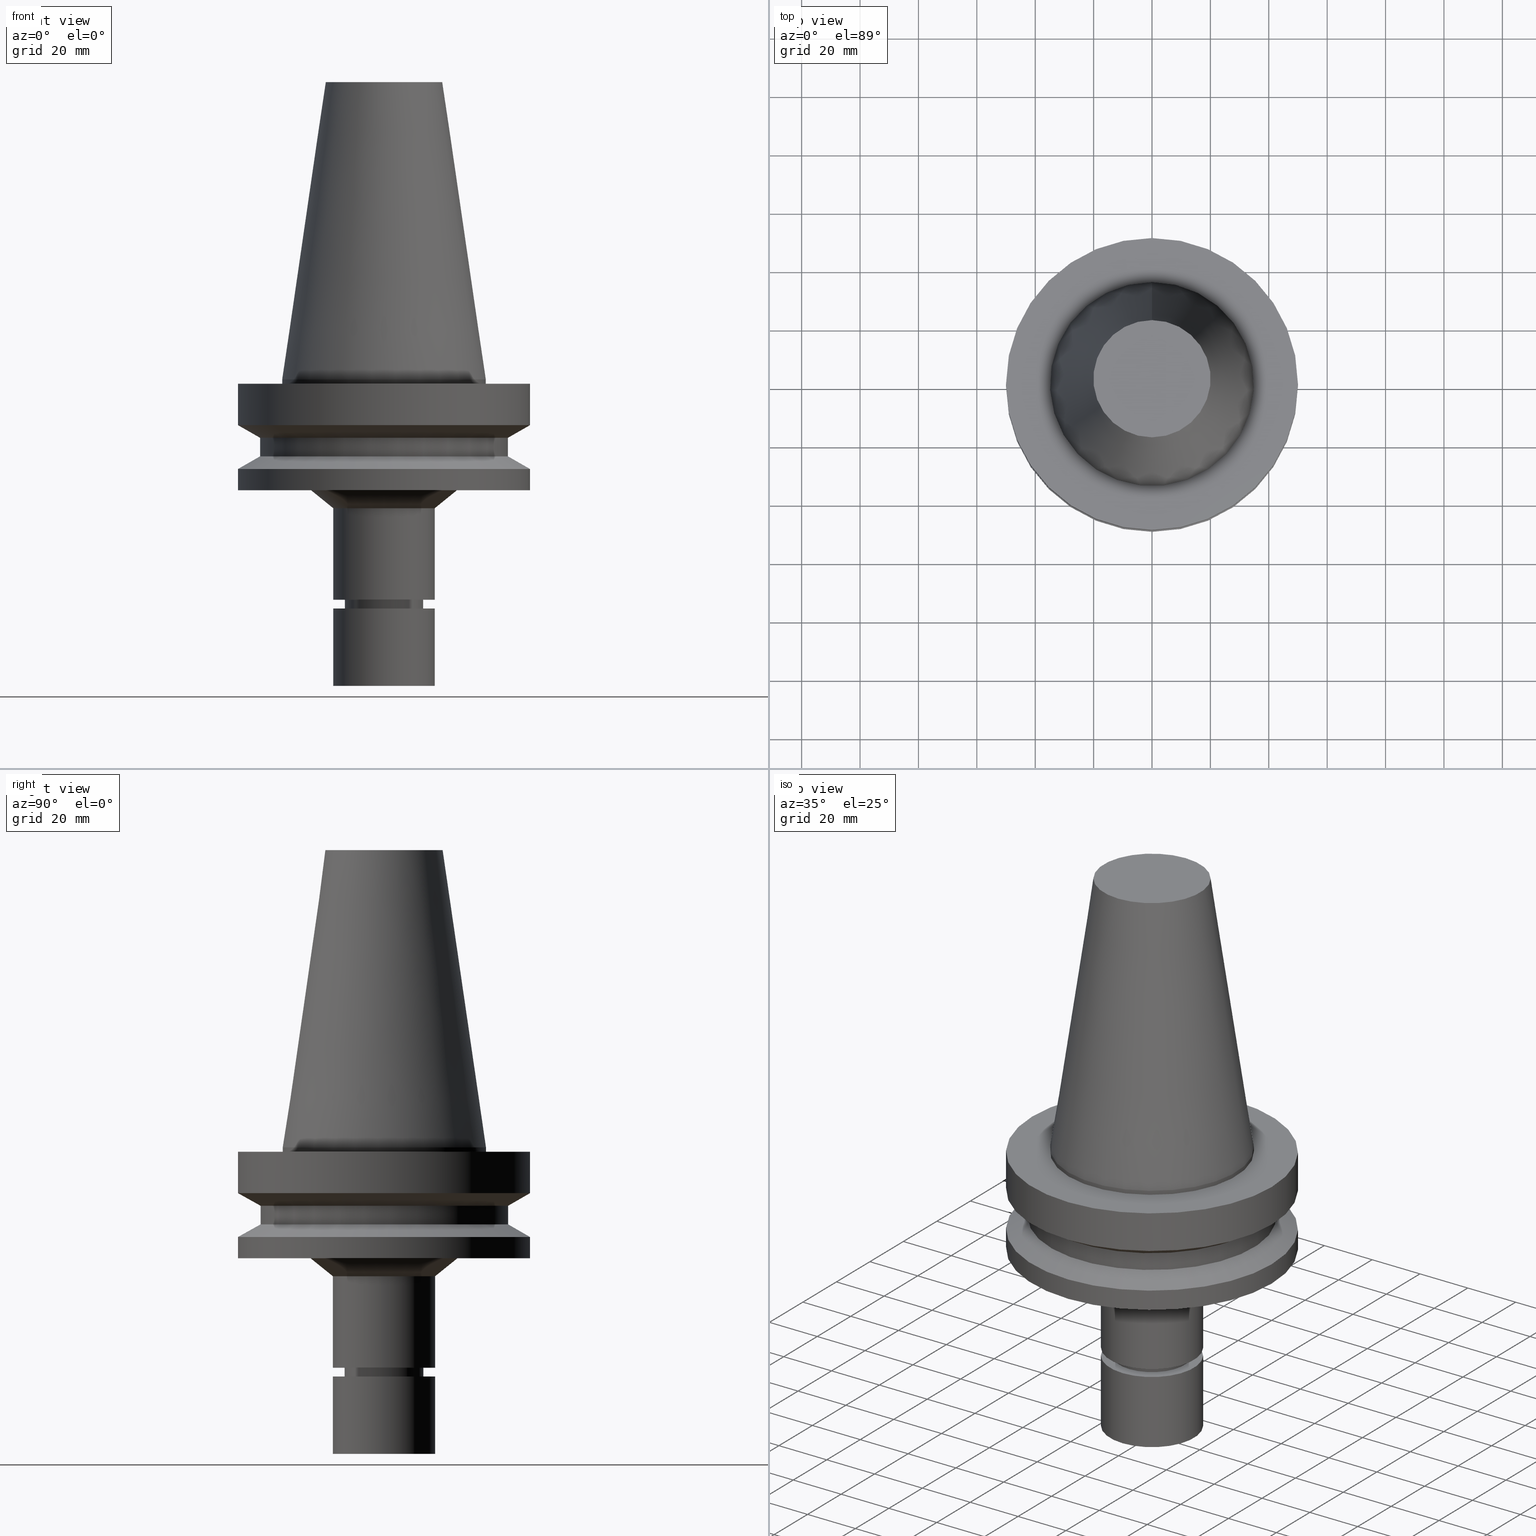
[diagram: canonical four-view strip — front | top / right | iso, engineering-drawing reading convention]
A machine part, canonical four-view strip (front | top / right | iso — engineering-drawing reading convention). The complete STEP part file that produces these views, byte-faithful:
ISO-10303-21;
HEADER;
FILE_DESCRIPTION((''),'1');
FILE_NAME('V:/90_\X2\53D65F9730C730FC30BF\X0\/00_\X2\6DE18DEF30C730FC30BF\X0\/ALL/BBT-BKUS\X2\FF76FF80FF9BFF78FF9E752852A05DE556F3\X0\201801/BBT50-MEGAER/BBT50-MEGAER20-105NL.stp','2018-02-02T07:58:22',(''),(''),'Spatial Interop R21 SP3','Kubotek KeyCreator 2011 V10.0.2 (22737)',' ');
FILE_SCHEMA(('automotive_design'));
ENDSEC;
DATA;
#1=MECHANICAL_DESIGN_GEOMETRIC_PRESENTATION_REPRESENTATION(' ',(#14,#15,#16,#17,#18,#19,#20,#21,#22,#23,#24,#25,#26,#27,#28,#29,#30,#31,#32,#33,#34,#35,#36,#37,#38,#39,#40,#41,#42,#43,#44,#45,#46,#47,#48,#49,#50,#51,#52,#53,#54,#55),#10);
#2=PRODUCT_DEFINITION_CONTEXT('',#56,'design');
#3=APPLICATION_PROTOCOL_DEFINITION('INTERNATIONAL STANDARD','automotive_design',1994,#56);
#4=PRODUCT_CATEGORY_RELATIONSHIP('NONE','NONE',#57,#58);
#5=SHAPE_DEFINITION_REPRESENTATION(#59,#60);
#6=PRODUCT_DEFINITION_CONTEXT('',#61,'design');
#7=APPLICATION_PROTOCOL_DEFINITION('INTERNATIONAL STANDARD','automotive_design',1994,#61);
#8=PRODUCT_CATEGORY_RELATIONSHIP('NONE','NONE',#62,#63);
#9=SHAPE_DEFINITION_REPRESENTATION(#64,#65);
#10= (GEOMETRIC_REPRESENTATION_CONTEXT(3)GLOBAL_UNCERTAINTY_ASSIGNED_CONTEXT((#68))GLOBAL_UNIT_ASSIGNED_CONTEXT((#70,#71,#72))REPRESENTATION_CONTEXT('NONE','WORKSPACE'));
#14=STYLED_ITEM('',(#74),#75);
#15=STYLED_ITEM('',(#76,#77),#78);
#16=STYLED_ITEM('',(#79,#80),#81);
#17=STYLED_ITEM('',(#82),#83);
#18=STYLED_ITEM('',(#84),#85);
#19=STYLED_ITEM('',(#86,#87),#88);
#20=STYLED_ITEM('',(#89,#90),#91);
#21=STYLED_ITEM('',(#92),#93);
#22=STYLED_ITEM('',(#94),#95);
#23=STYLED_ITEM('',(#96),#97);
#24=STYLED_ITEM('',(#98,#99),#100);
#25=STYLED_ITEM('',(#101),#102);
#26=STYLED_ITEM('',(#103,#104),#105);
#27=STYLED_ITEM('',(#106),#107);
#28=STYLED_ITEM('',(#108),#109);
#29=STYLED_ITEM('',(#110,#111),#112);
#30=STYLED_ITEM('',(#113,#114),#115);
#31=STYLED_ITEM('',(#116,#117),#118);
#32=STYLED_ITEM('',(#119),#120);
#33=STYLED_ITEM('',(#121,#122),#123);
#34=STYLED_ITEM('',(#124),#125);
#35=STYLED_ITEM('',(#126),#127);
#36=STYLED_ITEM('',(#128,#129),#130);
#37=STYLED_ITEM('',(#131,#132),#133);
#38=STYLED_ITEM('',(#134,#135),#136);
#39=STYLED_ITEM('',(#137),#138);
#40=STYLED_ITEM('',(#139),#140);
#41=STYLED_ITEM('',(#141),#142);
#42=STYLED_ITEM('',(#143,#144),#145);
#43=STYLED_ITEM('',(#146),#147);
#44=STYLED_ITEM('',(#148,#149),#150);
#45=STYLED_ITEM('',(#151,#152),#153);
#46=STYLED_ITEM('',(#154),#155);
#47=STYLED_ITEM('',(#156,#157),#158);
#48=STYLED_ITEM('',(#159,#160),#161);
#49=STYLED_ITEM('',(#162,#163),#164);
#50=STYLED_ITEM('',(#165,#166),#167);
#51=STYLED_ITEM('',(#168),#169);
#52=STYLED_ITEM('',(#170,#171),#172);
#53=STYLED_ITEM('',(#173,#174),#175);
#54=STYLED_ITEM('',(#176,#177),#178);
#55=STYLED_ITEM('',(#179),#180);
#56=APPLICATION_CONTEXT(' ');
#57=PRODUCT_CATEGORY('part','NONE');
#58=PRODUCT_RELATED_PRODUCT_CATEGORY('detail',' ',(#181));
#59=PRODUCT_DEFINITION_SHAPE('NONE','NONE',#182);
#60=ADVANCED_BREP_SHAPE_REPRESENTATION('Unnamed[1]',(#161,#183),#10);
#61=APPLICATION_CONTEXT(' ');
#62=PRODUCT_CATEGORY('part','NONE');
#63=PRODUCT_RELATED_PRODUCT_CATEGORY('detail',' ',(#184));
#64=PRODUCT_DEFINITION_SHAPE('NONE','NONE',#185);
#65=ADVANCED_BREP_SHAPE_REPRESENTATION('Unnamed[1]',(#91,#186),#10);
#68=UNCERTAINTY_MEASURE_WITH_UNIT(LENGTH_MEASURE(1.0E-006),#70,'','');
#70= (CONVERSION_BASED_UNIT('MILLIMETRE',#189)LENGTH_UNIT()NAMED_UNIT(#192));
#71= (NAMED_UNIT(#194)PLANE_ANGLE_UNIT()SI_UNIT($,.RADIAN.));
#72= (NAMED_UNIT(#194)SOLID_ANGLE_UNIT()SI_UNIT($,.STERADIAN.));
#74=PRESENTATION_STYLE_ASSIGNMENT((#200));
#75=EDGE_CURVE('Unnamed[1]',#201,#201,#202,.T.);
#76=PRESENTATION_STYLE_ASSIGNMENT((#203));
#77=PRESENTATION_STYLE_ASSIGNMENT((#204));
#78=ADVANCED_FACE('Unnamed[1]',(#205,#206),#207,.T.);
#79=PRESENTATION_STYLE_ASSIGNMENT((#208));
#80=PRESENTATION_STYLE_ASSIGNMENT((#209));
#81=ADVANCED_FACE('Unnamed[1]',(#210,#211),#212,.T.);
#82=PRESENTATION_STYLE_ASSIGNMENT((#213));
#83=EDGE_CURVE('Unnamed[1]',#214,#214,#215,.T.);
#84=PRESENTATION_STYLE_ASSIGNMENT((#216));
#85=EDGE_CURVE('Unnamed[1]',#217,#217,#218,.T.);
#86=PRESENTATION_STYLE_ASSIGNMENT((#219));
#87=PRESENTATION_STYLE_ASSIGNMENT((#220));
#88=ADVANCED_FACE('Unnamed[1]',(#221),#222,.T.);
#89=PRESENTATION_STYLE_ASSIGNMENT((#223));
#90=PRESENTATION_STYLE_ASSIGNMENT((#224));
#91=MANIFOLD_SOLID_BREP('Unnamed[1]',#225);
#92=PRESENTATION_STYLE_ASSIGNMENT((#226));
#93=EDGE_CURVE('Unnamed[1]',#227,#227,#228,.T.);
#94=PRESENTATION_STYLE_ASSIGNMENT((#229));
#95=EDGE_CURVE('Unnamed[1]',#230,#230,#231,.T.);
#96=PRESENTATION_STYLE_ASSIGNMENT((#232));
#97=EDGE_CURVE('Unnamed[1]',#233,#233,#234,.T.);
#98=PRESENTATION_STYLE_ASSIGNMENT((#235));
#99=PRESENTATION_STYLE_ASSIGNMENT((#236));
#100=ADVANCED_FACE('Unnamed[1]',(#237),#238,.T.);
#101=PRESENTATION_STYLE_ASSIGNMENT((#239));
#102=EDGE_CURVE('Unnamed[1]',#240,#240,#241,.T.);
#103=PRESENTATION_STYLE_ASSIGNMENT((#242));
#104=PRESENTATION_STYLE_ASSIGNMENT((#243));
#105=ADVANCED_FACE('Unnamed[1]',(#244,#245),#246,.T.);
#106=PRESENTATION_STYLE_ASSIGNMENT((#247));
#107=EDGE_CURVE('Unnamed[1]',#248,#248,#249,.T.);
#108=PRESENTATION_STYLE_ASSIGNMENT((#250));
#109=EDGE_CURVE('Unnamed[1]',#251,#251,#252,.T.);
#110=PRESENTATION_STYLE_ASSIGNMENT((#253));
#111=PRESENTATION_STYLE_ASSIGNMENT((#254));
#112=ADVANCED_FACE('Unnamed[1]',(#255,#256),#257,.T.);
#113=PRESENTATION_STYLE_ASSIGNMENT((#258));
#114=PRESENTATION_STYLE_ASSIGNMENT((#259));
#115=ADVANCED_FACE('Unnamed[1]',(#260,#261),#262,.T.);
#116=PRESENTATION_STYLE_ASSIGNMENT((#263));
#117=PRESENTATION_STYLE_ASSIGNMENT((#264));
#118=ADVANCED_FACE('Unnamed[1]',(#265,#266),#267,.T.);
#119=PRESENTATION_STYLE_ASSIGNMENT((#268));
#120=EDGE_CURVE('Unnamed[1]',#269,#269,#270,.T.);
#121=PRESENTATION_STYLE_ASSIGNMENT((#271));
#122=PRESENTATION_STYLE_ASSIGNMENT((#272));
#123=ADVANCED_FACE('Unnamed[1]',(#273,#274),#275,.T.);
#124=PRESENTATION_STYLE_ASSIGNMENT((#276));
#125=EDGE_CURVE('Unnamed[1]',#277,#277,#278,.T.);
#126=PRESENTATION_STYLE_ASSIGNMENT((#279));
#127=EDGE_CURVE('Unnamed[1]',#280,#280,#281,.T.);
#128=PRESENTATION_STYLE_ASSIGNMENT((#282));
#129=PRESENTATION_STYLE_ASSIGNMENT((#283));
#130=ADVANCED_FACE('Unnamed[1]',(#284,#285),#286,.T.);
#131=PRESENTATION_STYLE_ASSIGNMENT((#287));
#132=PRESENTATION_STYLE_ASSIGNMENT((#288));
#133=ADVANCED_FACE('Unnamed[1]',(#289,#290),#291,.T.);
#134=PRESENTATION_STYLE_ASSIGNMENT((#292));
#135=PRESENTATION_STYLE_ASSIGNMENT((#293));
#136=ADVANCED_FACE('Unnamed[1]',(#294,#295),#296,.T.);
#137=PRESENTATION_STYLE_ASSIGNMENT((#297));
#138=EDGE_CURVE('Unnamed[1]',#298,#298,#299,.T.);
#139=PRESENTATION_STYLE_ASSIGNMENT((#300));
#140=EDGE_CURVE('Unnamed[1]',#301,#301,#302,.T.);
#141=PRESENTATION_STYLE_ASSIGNMENT((#303));
#142=EDGE_CURVE('Unnamed[1]',#304,#304,#305,.T.);
#143=PRESENTATION_STYLE_ASSIGNMENT((#306));
#144=PRESENTATION_STYLE_ASSIGNMENT((#307));
#145=ADVANCED_FACE('Unnamed[1]',(#308,#309),#310,.T.);
#146=PRESENTATION_STYLE_ASSIGNMENT((#311));
#147=EDGE_CURVE('Unnamed[1]',#312,#312,#313,.T.);
#148=PRESENTATION_STYLE_ASSIGNMENT((#314));
#149=PRESENTATION_STYLE_ASSIGNMENT((#315));
#150=ADVANCED_FACE('Unnamed[1]',(#316,#317),#318,.T.);
#151=PRESENTATION_STYLE_ASSIGNMENT((#319));
#152=PRESENTATION_STYLE_ASSIGNMENT((#320));
#153=ADVANCED_FACE('Unnamed[1]',(#321,#322),#323,.T.);
#154=PRESENTATION_STYLE_ASSIGNMENT((#324));
#155=EDGE_CURVE('Unnamed[1]',#325,#325,#326,.T.);
#156=PRESENTATION_STYLE_ASSIGNMENT((#327));
#157=PRESENTATION_STYLE_ASSIGNMENT((#328));
#158=ADVANCED_FACE('Unnamed[1]',(#329,#330),#331,.T.);
#159=PRESENTATION_STYLE_ASSIGNMENT((#332));
#160=PRESENTATION_STYLE_ASSIGNMENT((#333));
#161=MANIFOLD_SOLID_BREP('Unnamed[1]',#334);
#162=PRESENTATION_STYLE_ASSIGNMENT((#335));
#163=PRESENTATION_STYLE_ASSIGNMENT((#336));
#164=ADVANCED_FACE('Unnamed[1]',(#337,#338),#339,.T.);
#165=PRESENTATION_STYLE_ASSIGNMENT((#340));
#166=PRESENTATION_STYLE_ASSIGNMENT((#341));
#167=ADVANCED_FACE('Unnamed[1]',(#342),#343,.T.);
#168=PRESENTATION_STYLE_ASSIGNMENT((#344));
#169=EDGE_CURVE('Unnamed[1]',#345,#345,#346,.T.);
#170=PRESENTATION_STYLE_ASSIGNMENT((#347));
#171=PRESENTATION_STYLE_ASSIGNMENT((#348));
#172=ADVANCED_FACE('Unnamed[1]',(#349),#350,.T.);
#173=PRESENTATION_STYLE_ASSIGNMENT((#351));
#174=PRESENTATION_STYLE_ASSIGNMENT((#352));
#175=ADVANCED_FACE('Unnamed[1]',(#353,#354),#355,.T.);
#176=PRESENTATION_STYLE_ASSIGNMENT((#356));
#177=PRESENTATION_STYLE_ASSIGNMENT((#357));
#178=ADVANCED_FACE('Unnamed[1]',(#358,#359),#360,.T.);
#179=PRESENTATION_STYLE_ASSIGNMENT((#361));
#180=EDGE_CURVE('Unnamed[1]',#362,#362,#363,.T.);
#181=PRODUCT('Unnamed[1]','Unnamed[1]','PART-Unnamed[1]-DESC',(#364));
#182=PRODUCT_DEFINITION('NONE','NONE',#365,#2);
#183=AXIS2_PLACEMENT_3D('',#366,#367,#368);
#184=PRODUCT('Unnamed[1]','Unnamed[1]','PART-Unnamed[1]-DESC',(#369));
#185=PRODUCT_DEFINITION('NONE','NONE',#370,#6);
#186=AXIS2_PLACEMENT_3D('',#371,#372,#373);
#189=LENGTH_MEASURE_WITH_UNIT(LENGTH_MEASURE(1.0),#374);
#192=DIMENSIONAL_EXPONENTS(1.0,0.0,0.0,0.0,0.0,0.0,0.0);
#194=DIMENSIONAL_EXPONENTS(0.0,0.0,0.0,0.0,0.0,0.0,0.0);
#200=CURVE_STYLE('',#375,POSITIVE_LENGTH_MEASURE(1000.0),#376);
#201=VERTEX_POINT('',#377);
#202=CIRCLE('',#378,42.5);
#203=SURFACE_STYLE_USAGE(.BOTH.,#379);
#204=CURVE_STYLE('',#380,POSITIVE_LENGTH_MEASURE(1000.0),#381);
#205=FACE_BOUND('',#382,.T.);
#206=FACE_BOUND('',#383,.T.);
#207=CYLINDRICAL_SURFACE('',#384,12.4999999999999);
#208=SURFACE_STYLE_USAGE(.BOTH.,#385);
#209=CURVE_STYLE('',#386,POSITIVE_LENGTH_MEASURE(1000.0),#387);
#210=FACE_BOUND('',#388,.T.);
#211=FACE_BOUND('',#389,.T.);
#212=CYLINDRICAL_SURFACE('',#390,42.5);
#213=CURVE_STYLE('',#391,POSITIVE_LENGTH_MEASURE(1000.0),#392);
#214=VERTEX_POINT('',#393);
#215=CIRCLE('',#394,13.4999999999908);
#216=CURVE_STYLE('',#395,POSITIVE_LENGTH_MEASURE(1000.0),#396);
#217=VERTEX_POINT('',#397);
#218=CIRCLE('',#398,20.0791666651884);
#219=SURFACE_STYLE_USAGE(.BOTH.,#399);
#220=CURVE_STYLE('',#400,POSITIVE_LENGTH_MEASURE(1000.0),#401);
#221=FACE_OUTER_BOUND('',#402,.T.);
#222=PLANE('',#403);
#223=SURFACE_STYLE_USAGE(.BOTH.,#404);
#224=CURVE_STYLE('',#405,POSITIVE_LENGTH_MEASURE(1000.0),#406);
#225=CLOSED_SHELL('',(#167,#100,#145));
#226=CURVE_STYLE('',#407,POSITIVE_LENGTH_MEASURE(1000.0),#408);
#227=VERTEX_POINT('',#409);
#228=CIRCLE('',#410,50.0);
#229=CURVE_STYLE('',#411,POSITIVE_LENGTH_MEASURE(1000.0),#412);
#230=VERTEX_POINT('',#413);
#231=CIRCLE('',#414,13.5000000000005);
#232=CURVE_STYLE('',#415,POSITIVE_LENGTH_MEASURE(1000.0),#416);
#233=VERTEX_POINT('',#417);
#234=CIRCLE('',#418,17.4999999999986);
#235=SURFACE_STYLE_USAGE(.BOTH.,#419);
#236=CURVE_STYLE('',#420,POSITIVE_LENGTH_MEASURE(1000.0),#421);
#237=FACE_OUTER_BOUND('',#422,.T.);
#238=PLANE('',#423);
#239=CURVE_STYLE('',#424,POSITIVE_LENGTH_MEASURE(1000.0),#425);
#240=VERTEX_POINT('',#426);
#241=CIRCLE('',#427,34.925);
#242=SURFACE_STYLE_USAGE(.BOTH.,#428);
#243=CURVE_STYLE('',#429,POSITIVE_LENGTH_MEASURE(1000.0),#430);
#244=FACE_OUTER_BOUND('',#431,.T.);
#245=FACE_BOUND('',#432,.T.);
#246=PLANE('',#433);
#247=CURVE_STYLE('',#434,POSITIVE_LENGTH_MEASURE(1000.0),#435);
#248=VERTEX_POINT('',#436);
#249=CIRCLE('',#437,11.3999999999977);
#250=CURVE_STYLE('',#438,POSITIVE_LENGTH_MEASURE(1000.0),#439);
#251=VERTEX_POINT('',#440);
#252=CIRCLE('',#441,50.0);
#253=SURFACE_STYLE_USAGE(.BOTH.,#442);
#254=CURVE_STYLE('',#443,POSITIVE_LENGTH_MEASURE(1000.0),#444);
#255=FACE_BOUND('',#445,.T.);
#256=FACE_BOUND('',#446,.T.);
#257=CYLINDRICAL_SURFACE('',#447,50.0);
#258=SURFACE_STYLE_USAGE(.BOTH.,#448);
#259=CURVE_STYLE('',#449,POSITIVE_LENGTH_MEASURE(1000.0),#450);
#260=FACE_BOUND('',#451,.T.);
#261=FACE_BOUND('',#452,.T.);
#262=CONICAL_SURFACE('',#453,46.25,1.04719755108882);
#263=SURFACE_STYLE_USAGE(.BOTH.,#454);
#264=CURVE_STYLE('',#455,POSITIVE_LENGTH_MEASURE(1000.0),#456);
#265=FACE_BOUND('',#457,.T.);
#266=FACE_BOUND('',#458,.T.);
#267=CYLINDRICAL_SURFACE('',#459,34.925);
#268=CURVE_STYLE('',#460,POSITIVE_LENGTH_MEASURE(1000.0),#461);
#269=VERTEX_POINT('',#462);
#270=CIRCLE('',#463,17.5);
#271=SURFACE_STYLE_USAGE(.BOTH.,#464);
#272=CURVE_STYLE('',#465,POSITIVE_LENGTH_MEASURE(1000.0),#466);
#273=FACE_BOUND('',#467,.T.);
#274=FACE_BOUND('',#468,.T.);
#275=CYLINDRICAL_SURFACE('',#469,50.0);
#276=CURVE_STYLE('',#470,POSITIVE_LENGTH_MEASURE(1000.0),#471);
#277=VERTEX_POINT('',#472);
#278=CIRCLE('',#473,25.1435726714495);
#279=CURVE_STYLE('',#474,POSITIVE_LENGTH_MEASURE(1000.0),#475);
#280=VERTEX_POINT('',#476);
#281=CIRCLE('',#477,17.5);
#282=SURFACE_STYLE_USAGE(.BOTH.,#478);
#283=CURVE_STYLE('',#479,POSITIVE_LENGTH_MEASURE(1000.0),#480);
#284=FACE_BOUND('',#481,.T.);
#285=FACE_OUTER_BOUND('',#482,.T.);
#286=PLANE('',#483);
#287=SURFACE_STYLE_USAGE(.BOTH.,#484);
#288=CURVE_STYLE('',#485,POSITIVE_LENGTH_MEASURE(1000.0),#486);
#289=FACE_BOUND('',#487,.T.);
#290=FACE_BOUND('',#488,.T.);
#291=CONICAL_SURFACE('',#489,13.0000000000002,1.04719755119487);
#292=SURFACE_STYLE_USAGE(.BOTH.,#490);
#293=CURVE_STYLE('',#491,POSITIVE_LENGTH_MEASURE(1000.0),#492);
#294=FACE_BOUND('',#493,.T.);
#295=FACE_BOUND('',#494,.T.);
#296=CONICAL_SURFACE('',#495,21.3217863357251,0.892883926160643);
#297=CURVE_STYLE('',#496,POSITIVE_LENGTH_MEASURE(1000.0),#497);
#298=VERTEX_POINT('',#498);
#299=CIRCLE('',#499,12.4999999999998);
#300=CURVE_STYLE('',#500,POSITIVE_LENGTH_MEASURE(1000.0),#501);
#301=VERTEX_POINT('',#502);
#302=CIRCLE('',#503,42.5);
#303=CURVE_STYLE('',#504,POSITIVE_LENGTH_MEASURE(1000.0),#505);
#304=VERTEX_POINT('',#506);
#305=CIRCLE('',#507,34.925);
#306=SURFACE_STYLE_USAGE(.BOTH.,#508);
#307=CURVE_STYLE('',#509,POSITIVE_LENGTH_MEASURE(1000.0),#510);
#308=FACE_BOUND('',#511,.T.);
#309=FACE_BOUND('',#512,.T.);
#310=CYLINDRICAL_SURFACE('',#513,17.5);
#311=CURVE_STYLE('',#514,POSITIVE_LENGTH_MEASURE(1000.0),#515);
#312=VERTEX_POINT('',#516);
#313=CIRCLE('',#517,12.4999999999999);
#314=SURFACE_STYLE_USAGE(.BOTH.,#518);
#315=CURVE_STYLE('',#519,POSITIVE_LENGTH_MEASURE(1000.0),#520);
#316=FACE_BOUND('',#521,.T.);
#317=FACE_BOUND('',#522,.T.);
#318=CONICAL_SURFACE('',#523,11.9499999999988,0.523598775598671);
#319=SURFACE_STYLE_USAGE(.BOTH.,#524);
#320=CURVE_STYLE('',#525,POSITIVE_LENGTH_MEASURE(1000.0),#526);
#321=FACE_BOUND('',#527,.T.);
#322=FACE_BOUND('',#528,.T.);
#323=CYLINDRICAL_SURFACE('',#529,17.4999999999997);
#324=CURVE_STYLE('',#530,POSITIVE_LENGTH_MEASURE(1000.0),#531);
#325=VERTEX_POINT('',#532);
#326=CIRCLE('',#533,50.0);
#327=SURFACE_STYLE_USAGE(.BOTH.,#534);
#328=CURVE_STYLE('',#535,POSITIVE_LENGTH_MEASURE(1000.0),#536);
#329=FACE_BOUND('',#537,.T.);
#330=FACE_BOUND('',#538,.T.);
#331=CONICAL_SURFACE('',#539,27.5020833325942,0.144812498253157);
#332=SURFACE_STYLE_USAGE(.BOTH.,#540);
#333=CURVE_STYLE('',#541,POSITIVE_LENGTH_MEASURE(1000.0),#542);
#334=CLOSED_SHELL('',(#88,#150,#78,#133,#175,#178,#153,#136,#105,#123,#164,#81,#115,#112,#130,#118,#158,#172));
#335=SURFACE_STYLE_USAGE(.BOTH.,#543);
#336=CURVE_STYLE('',#544,POSITIVE_LENGTH_MEASURE(1000.0),#545);
#337=FACE_BOUND('',#546,.T.);
#338=FACE_BOUND('',#547,.T.);
#339=CONICAL_SURFACE('',#548,46.25,1.04719755108882);
#340=SURFACE_STYLE_USAGE(.BOTH.,#549);
#341=CURVE_STYLE('',#550,POSITIVE_LENGTH_MEASURE(1000.0),#551);
#342=FACE_OUTER_BOUND('',#552,.T.);
#343=PLANE('',#553);
#344=CURVE_STYLE('',#554,POSITIVE_LENGTH_MEASURE(1000.0),#555);
#345=VERTEX_POINT('',#556);
#346=CIRCLE('',#557,17.5000000000008);
#347=SURFACE_STYLE_USAGE(.BOTH.,#558);
#348=CURVE_STYLE('',#559,POSITIVE_LENGTH_MEASURE(1000.0),#560);
#349=FACE_OUTER_BOUND('',#561,.T.);
#350=PLANE('',#562);
#351=SURFACE_STYLE_USAGE(.BOTH.,#563);
#352=CURVE_STYLE('',#564,POSITIVE_LENGTH_MEASURE(1000.0),#565);
#353=FACE_BOUND('',#566,.T.);
#354=FACE_BOUND('',#567,.T.);
#355=CYLINDRICAL_SURFACE('',#568,13.4999999999956);
#356=SURFACE_STYLE_USAGE(.BOTH.,#569);
#357=CURVE_STYLE('',#570,POSITIVE_LENGTH_MEASURE(1000.0),#571);
#358=FACE_OUTER_BOUND('',#572,.T.);
#359=FACE_BOUND('',#573,.T.);
#360=PLANE('',#574);
#361=CURVE_STYLE('',#575,POSITIVE_LENGTH_MEASURE(1000.0),#576);
#362=VERTEX_POINT('',#577);
#363=CIRCLE('',#578,50.0);
#364=PRODUCT_CONTEXT('',#56,'mechanical');
#365=PRODUCT_DEFINITION_FORMATION_WITH_SPECIFIED_SOURCE(' ','NONE',#181,.NOT_KNOWN.);
#366=CARTESIAN_POINT('',(0.0,0.0,0.0));
#367=DIRECTION('',(0.0,0.0,1.0));
#368=DIRECTION('',(1.0,0.0,0.0));
#369=PRODUCT_CONTEXT('',#61,'mechanical');
#370=PRODUCT_DEFINITION_FORMATION_WITH_SPECIFIED_SOURCE(' ','NONE',#184,.NOT_KNOWN.);
#371=CARTESIAN_POINT('',(0.0,0.0,0.0));
#372=DIRECTION('',(0.0,0.0,1.0));
#373=DIRECTION('',(1.0,0.0,0.0));
#374= (NAMED_UNIT(#192)LENGTH_UNIT()SI_UNIT(.MILLI.,.METRE.));
#375=DRAUGHTING_PRE_DEFINED_CURVE_FONT('continuous');
#376=COLOUR_RGB('',0.0,1.0,0.0);
#377=CARTESIAN_POINT('',(1.2264915470779E-015,42.5,-20.03012702));
#378=AXIS2_PLACEMENT_3D('',#580,#581,#582);
#379=SURFACE_SIDE_STYLE('',(#583));
#380=DRAUGHTING_PRE_DEFINED_CURVE_FONT('continuous');
#381=COLOUR_RGB('',0.0,1.0,0.0);
#382=EDGE_LOOP('',(#584));
#383=EDGE_LOOP('',(#585));
#384=AXIS2_PLACEMENT_3D('',#586,#587,#588);
#385=SURFACE_SIDE_STYLE('',(#589));
#386=DRAUGHTING_PRE_DEFINED_CURVE_FONT('continuous');
#387=COLOUR_RGB('',0.0,1.0,0.0);
#388=EDGE_LOOP('',(#590));
#389=EDGE_LOOP('',(#591));
#390=AXIS2_PLACEMENT_3D('',#592,#593,#594);
#391=DRAUGHTING_PRE_DEFINED_CURVE_FONT('continuous');
#392=COLOUR_RGB('',0.0,1.0,0.0);
#393=CARTESIAN_POINT('',(4.62304166678123E-015,13.4999999999908,-75.4999999999996));
#394=AXIS2_PLACEMENT_3D('',#595,#596,#597);
#395=DRAUGHTING_PRE_DEFINED_CURVE_FONT('continuous');
#396=COLOUR_RGB('',0.0,1.0,0.0);
#397=CARTESIAN_POINT('',(-6.23345220766003E-015,20.0791666651884,101.8));
#398=AXIS2_PLACEMENT_3D('',#598,#599,#600);
#399=SURFACE_SIDE_STYLE('',(#601));
#400=DRAUGHTING_PRE_DEFINED_CURVE_FONT('continuous');
#401=COLOUR_RGB('',0.0,1.0,0.0);
#402=EDGE_LOOP('',(#602));
#403=AXIS2_PLACEMENT_3D('',#603,#604,#605);
#404=SURFACE_SIDE_STYLE('',(#606));
#405=DRAUGHTING_PRE_DEFINED_CURVE_FONT('continuous');
#406=COLOUR_RGB('',0.0,1.0,0.0);
#407=DRAUGHTING_PRE_DEFINED_CURVE_FONT('continuous');
#408=COLOUR_RGB('',0.0,1.0,0.0);
#409=CARTESIAN_POINT('',(1.87983283669119E-015,50.0,-30.7000000000001));
#410=AXIS2_PLACEMENT_3D('',#607,#608,#609);
#411=DRAUGHTING_PRE_DEFINED_CURVE_FONT('continuous');
#412=COLOUR_RGB('',0.0,1.0,0.0);
#413=CARTESIAN_POINT('',(4.97955624228199E-015,13.5000000000005,-81.3223248654052));
#414=AXIS2_PLACEMENT_3D('',#610,#611,#612);
#415=DRAUGHTING_PRE_DEFINED_CURVE_FONT('continuous');
#416=COLOUR_RGB('',0.0,1.0,0.0);
#417=CARTESIAN_POINT('',(4.62304166678125E-015,17.4999999999986,-75.4999999999998));
#418=AXIS2_PLACEMENT_3D('',#613,#614,#615);
#419=SURFACE_SIDE_STYLE('',(#616));
#420=DRAUGHTING_PRE_DEFINED_CURVE_FONT('continuous');
#421=COLOUR_RGB('',0.0,1.0,0.0);
#422=EDGE_LOOP('',(#617));
#423=AXIS2_PLACEMENT_3D('',#618,#619,#620);
#424=DRAUGHTING_PRE_DEFINED_CURVE_FONT('continuous');
#425=COLOUR_RGB('',0.0,1.0,0.0);
#426=CARTESIAN_POINT('',(9.18485099360511E-017,34.925,-1.5));
#427=AXIS2_PLACEMENT_3D('',#621,#622,#623);
#428=SURFACE_SIDE_STYLE('',(#624));
#429=DRAUGHTING_PRE_DEFINED_CURVE_FONT('continuous');
#430=COLOUR_RGB('',0.0,1.0,0.0);
#431=EDGE_LOOP('',(#625));
#432=EDGE_LOOP('',(#626));
#433=AXIS2_PLACEMENT_3D('',#627,#628,#629);
#434=DRAUGHTING_PRE_DEFINED_CURVE_FONT('continuous');
#435=COLOUR_RGB('',0.0,1.0,0.0);
#436=CARTESIAN_POINT('',(5.82931876394141E-015,11.3999999999977,-95.2000000000002));
#437=AXIS2_PLACEMENT_3D('',#630,#631,#632);
#438=DRAUGHTING_PRE_DEFINED_CURVE_FONT('continuous');
#439=COLOUR_RGB('',0.0,1.0,0.0);
#440=CARTESIAN_POINT('',(9.61347737330674E-016,50.0,-15.7));
#441=AXIS2_PLACEMENT_3D('',#633,#634,#635);
#442=SURFACE_SIDE_STYLE('',(#636));
#443=DRAUGHTING_PRE_DEFINED_CURVE_FONT('continuous');
#444=COLOUR_RGB('',0.0,1.0,0.0);
#445=EDGE_LOOP('',(#637));
#446=EDGE_LOOP('',(#638));
#447=AXIS2_PLACEMENT_3D('',#639,#640,#641);
#448=SURFACE_SIDE_STYLE('',(#642));
#449=DRAUGHTING_PRE_DEFINED_CURVE_FONT('continuous');
#450=COLOUR_RGB('',0.0,1.0,0.0);
#451=EDGE_LOOP('',(#643));
#452=EDGE_LOOP('',(#644));
#453=AXIS2_PLACEMENT_3D('',#645,#646,#647);
#454=SURFACE_SIDE_STYLE('',(#648));
#455=DRAUGHTING_PRE_DEFINED_CURVE_FONT('continuous');
#456=COLOUR_RGB('',0.0,1.0,0.0);
#457=EDGE_LOOP('',(#649));
#458=EDGE_LOOP('',(#650));
#459=AXIS2_PLACEMENT_3D('',#651,#652,#653);
#460=DRAUGHTING_PRE_DEFINED_CURVE_FONT('continuous');
#461=COLOUR_RGB('',0.0,1.0,0.0);
#462=CARTESIAN_POINT('',(6.4293956955236E-015,17.5,-105.0));
#463=AXIS2_PLACEMENT_3D('',#654,#655,#656);
#464=SURFACE_SIDE_STYLE('',(#657));
#465=DRAUGHTING_PRE_DEFINED_CURVE_FONT('continuous');
#466=COLOUR_RGB('',0.0,1.0,0.0);
#467=EDGE_LOOP('',(#658));
#468=EDGE_LOOP('',(#659));
#469=AXIS2_PLACEMENT_3D('',#660,#661,#662);
#470=DRAUGHTING_PRE_DEFINED_CURVE_FONT('continuous');
#471=COLOUR_RGB('',0.0,1.0,0.0);
#472=CARTESIAN_POINT('',(2.32682891837996E-015,25.1435726714495,-37.9999999999999));
#473=AXIS2_PLACEMENT_3D('',#663,#664,#665);
#474=DRAUGHTING_PRE_DEFINED_CURVE_FONT('continuous');
#475=COLOUR_RGB('',0.0,1.0,0.0);
#476=CARTESIAN_POINT('',(4.80673962098472E-015,17.5,-78.5000152587891));
#477=AXIS2_PLACEMENT_3D('',#666,#667,#668);
#478=SURFACE_SIDE_STYLE('',(#669));
#479=DRAUGHTING_PRE_DEFINED_CURVE_FONT('continuous');
#480=COLOUR_RGB('',0.0,1.0,0.0);
#481=EDGE_LOOP('',(#670));
#482=EDGE_LOOP('',(#671));
#483=AXIS2_PLACEMENT_3D('',#672,#673,#674);
#484=SURFACE_SIDE_STYLE('',(#675));
#485=DRAUGHTING_PRE_DEFINED_CURVE_FONT('continuous');
#486=COLOUR_RGB('',0.0,1.0,0.0);
#487=EDGE_LOOP('',(#676));
#488=EDGE_LOOP('',(#677));
#489=AXIS2_PLACEMENT_3D('',#678,#679,#680);
#490=SURFACE_SIDE_STYLE('',(#681));
#491=DRAUGHTING_PRE_DEFINED_CURVE_FONT('continuous');
#492=COLOUR_RGB('',0.0,1.0,0.0);
#493=EDGE_LOOP('',(#682));
#494=EDGE_LOOP('',(#683));
#495=AXIS2_PLACEMENT_3D('',#684,#685,#686);
#496=DRAUGHTING_PRE_DEFINED_CURVE_FONT('continuous');
#497=COLOUR_RGB('',0.0,1.0,0.0);
#498=CARTESIAN_POINT('',(5.71265548768155E-015,12.4999999999998,-93.2947441116725));
#499=AXIS2_PLACEMENT_3D('',#687,#688,#689);
#500=DRAUGHTING_PRE_DEFINED_CURVE_FONT('continuous');
#501=COLOUR_RGB('',0.0,1.0,0.0);
#502=CARTESIAN_POINT('',(1.61468902694397E-015,42.5,-26.3698729800001));
#503=AXIS2_PLACEMENT_3D('',#690,#691,#692);
#504=DRAUGHTING_PRE_DEFINED_CURVE_FONT('continuous');
#505=COLOUR_RGB('',0.0,1.0,0.0);
#506=CARTESIAN_POINT('',(-4.30483861169435E-031,34.925,4.27707894602213E-015));
#507=AXIS2_PLACEMENT_3D('',#693,#694,#695);
#508=SURFACE_SIDE_STYLE('',(#696));
#509=DRAUGHTING_PRE_DEFINED_CURVE_FONT('continuous');
#510=COLOUR_RGB('',0.0,1.0,0.0);
#511=EDGE_LOOP('',(#697));
#512=EDGE_LOOP('',(#698));
#513=AXIS2_PLACEMENT_3D('',#699,#700,#701);
#514=DRAUGHTING_PRE_DEFINED_CURVE_FONT('continuous');
#515=COLOUR_RGB('',0.0,1.0,0.0);
#516=CARTESIAN_POINT('',(5.01490875023964E-015,12.4999999999999,-81.8996751345975));
#517=AXIS2_PLACEMENT_3D('',#702,#703,#704);
#518=SURFACE_SIDE_STYLE('',(#705));
#519=DRAUGHTING_PRE_DEFINED_CURVE_FONT('continuous');
#520=COLOUR_RGB('',0.0,1.0,0.0);
#521=EDGE_LOOP('',(#706));
#522=EDGE_LOOP('',(#707));
#523=AXIS2_PLACEMENT_3D('',#708,#709,#710);
#524=SURFACE_SIDE_STYLE('',(#711));
#525=DRAUGHTING_PRE_DEFINED_CURVE_FONT('continuous');
#526=COLOUR_RGB('',0.0,1.0,0.0);
#527=EDGE_LOOP('',(#712));
#528=EDGE_LOOP('',(#713));
#529=AXIS2_PLACEMENT_3D('',#714,#715,#716);
#530=DRAUGHTING_PRE_DEFINED_CURVE_FONT('continuous');
#531=COLOUR_RGB('',0.0,1.0,0.0);
#532=CARTESIAN_POINT('',(9.18485099360509E-017,50.0,-1.49999999999999));
#533=AXIS2_PLACEMENT_3D('',#717,#718,#719);
#534=SURFACE_SIDE_STYLE('',(#720));
#535=DRAUGHTING_PRE_DEFINED_CURVE_FONT('continuous');
#536=COLOUR_RGB('',0.0,1.0,0.0);
#537=EDGE_LOOP('',(#721));
#538=EDGE_LOOP('',(#722));
#539=AXIS2_PLACEMENT_3D('',#723,#724,#725);
#540=SURFACE_SIDE_STYLE('',(#726));
#541=DRAUGHTING_PRE_DEFINED_CURVE_FONT('continuous');
#542=COLOUR_RGB('',0.0,1.0,0.0);
#543=SURFACE_SIDE_STYLE('',(#727));
#544=DRAUGHTING_PRE_DEFINED_CURVE_FONT('continuous');
#545=COLOUR_RGB('',0.0,1.0,0.0);
#546=EDGE_LOOP('',(#728));
#547=EDGE_LOOP('',(#729));
#548=AXIS2_PLACEMENT_3D('',#730,#731,#732);
#549=SURFACE_SIDE_STYLE('',(#733));
#550=DRAUGHTING_PRE_DEFINED_CURVE_FONT('continuous');
#551=COLOUR_RGB('',0.0,1.0,0.0);
#552=EDGE_LOOP('',(#734));
#553=AXIS2_PLACEMENT_3D('',#735,#736,#737);
#554=DRAUGHTING_PRE_DEFINED_CURVE_FONT('continuous');
#555=COLOUR_RGB('',0.0,1.0,0.0);
#556=CARTESIAN_POINT('',(2.70369652461894E-015,17.5000000000008,-44.1547150819543));
#557=AXIS2_PLACEMENT_3D('',#738,#739,#740);
#558=SURFACE_SIDE_STYLE('',(#741));
#559=DRAUGHTING_PRE_DEFINED_CURVE_FONT('continuous');
#560=COLOUR_RGB('',0.0,1.0,0.0);
#561=EDGE_LOOP('',(#742));
#562=AXIS2_PLACEMENT_3D('',#743,#744,#745);
#563=SURFACE_SIDE_STYLE('',(#746));
#564=DRAUGHTING_PRE_DEFINED_CURVE_FONT('continuous');
#565=COLOUR_RGB('',0.0,1.0,0.0);
#566=EDGE_LOOP('',(#747));
#567=EDGE_LOOP('',(#748));
#568=AXIS2_PLACEMENT_3D('',#749,#750,#751);
#569=SURFACE_SIDE_STYLE('',(#752));
#570=DRAUGHTING_PRE_DEFINED_CURVE_FONT('continuous');
#571=COLOUR_RGB('',0.0,1.0,0.0);
#572=EDGE_LOOP('',(#753));
#573=EDGE_LOOP('',(#754));
#574=AXIS2_PLACEMENT_3D('',#755,#756,#757);
#575=DRAUGHTING_PRE_DEFINED_CURVE_FONT('continuous');
#576=COLOUR_RGB('',0.0,1.0,0.0);
#577=CARTESIAN_POINT('',(2.32682891837996E-015,50.0,-37.9999999999998));
#578=AXIS2_PLACEMENT_3D('',#758,#759,#760);
#580=CARTESIAN_POINT('',(1.2264915470779E-015,1.29933506625849E-014,-20.03012702));
#581=DIRECTION('',(-6.12323399573677E-017,1.40684069970318E-019,1.0));
#582=DIRECTION('',(-4.81853831596719E-033,1.0,-1.40684069970318E-019));
#583=SURFACE_STYLE_FILL_AREA(#761);
#584=ORIENTED_EDGE('',*,*,#147,.F.);
#585=ORIENTED_EDGE('',*,*,#138,.T.);
#586=CARTESIAN_POINT('',(5.3637821189606E-015,1.29838450504104E-014,-87.597209623135));
#587=DIRECTION('',(-6.12323399573677E-017,1.406840699171E-019,1.0));
#588=DIRECTION('',(-4.81853831597527E-033,1.0,-1.406840699171E-019));
#589=SURFACE_STYLE_FILL_AREA(#762);
#590=ORIENTED_EDGE('',*,*,#75,.F.);
#591=ORIENTED_EDGE('',*,*,#140,.T.);
#592=CARTESIAN_POINT('',(1.42059028701093E-015,1.29929047119529E-014,-23.2));
#593=DIRECTION('',(-6.12323399573677E-017,1.40684069970318E-019,1.0));
#594=DIRECTION('',(-4.81853831596719E-033,1.0,-1.40684069970318E-019));
#595=CARTESIAN_POINT('',(4.62304166678123E-015,1.29855469350951E-014,-75.4999999999995));
#596=DIRECTION('',(-6.12323399573676E-017,1.40684069974637E-019,1.0));
#597=DIRECTION('',(-4.81853831597876E-033,1.0,-1.40684069974637E-019));
#598=CARTESIAN_POINT('',(-6.23345220766003E-015,1.30104902206953E-014,101.8));
#599=DIRECTION('',(-6.12323399573677E-017,1.40684069919115E-019,1.0));
#600=DIRECTION('',(-4.81853831597375E-033,1.0,-1.40684069919115E-019));
#601=SURFACE_STYLE_FILL_AREA(#763);
#602=ORIENTED_EDGE('',*,*,#107,.F.);
#603=CARTESIAN_POINT('',(5.82931876394141E-015,5.69999999999887,-95.2000000000001));
#604=DIRECTION('',(6.12323399573677E-017,-1.4836329757143E-014,-1.0));
#605=DIRECTION('',(-9.03636034678221E-031,-1.0,1.4836329757143E-014));
#606=SURFACE_STYLE_FILL_AREA(#764);
#607=CARTESIAN_POINT('',(1.87983283669119E-015,1.29918495814283E-014,-30.7));
#608=DIRECTION('',(-6.12323399573677E-017,1.40684069917098E-019,1.0));
#609=DIRECTION('',(-4.81853831597521E-033,1.0,-1.40684069917098E-019));
#610=CARTESIAN_POINT('',(4.97955624228199E-015,1.29847278267365E-014,-81.3223248654052));
#611=DIRECTION('',(-6.12323399573677E-017,1.40684069974537E-019,1.0));
#612=DIRECTION('',(-4.81853831596866E-033,1.0,-1.40684069974537E-019));
#613=CARTESIAN_POINT('',(4.62304166678125E-015,1.29855469350951E-014,-75.4999999999998));
#614=DIRECTION('',(-6.12323399573677E-017,1.40684069954038E-019,1.0));
#615=DIRECTION('',(-4.81853831597151E-033,1.0,-1.40684069954038E-019));
#616=SURFACE_STYLE_FILL_AREA(#765);
#617=ORIENTED_EDGE('',*,*,#127,.F.);
#618=CARTESIAN_POINT('',(4.80673962098472E-015,8.75000000000002,-78.5000152587891));
#619=DIRECTION('',(-6.12323399573677E-017,-1.22464679914735E-016,1.0));
#620=DIRECTION('',(1.23259516440783E-032,-1.0,-1.22464679914735E-016));
#621=CARTESIAN_POINT('',(9.18485099360515E-017,1.29959575562706E-014,-1.5));
#622=DIRECTION('',(-6.12323399573677E-017,1.4068406993625E-019,1.0));
#623=DIRECTION('',(-4.81853831597758E-033,1.0,-1.4068406993625E-019));
#624=SURFACE_STYLE_FILL_AREA(#766);
#625=ORIENTED_EDGE('',*,*,#180,.F.);
#626=ORIENTED_EDGE('',*,*,#125,.T.);
#627=CARTESIAN_POINT('',(2.32682891837996E-015,37.5717863357248,-37.9999999999998));
#628=DIRECTION('',(6.12323399573677E-017,2.98105222497178E-015,-1.0));
#629=DIRECTION('',(1.87363956000909E-031,-1.0,-2.98105222497178E-015));
#630=CARTESIAN_POINT('',(5.82931876394141E-015,1.29827754589173E-014,-95.2000000000002));
#631=DIRECTION('',(-6.12323399573677E-017,1.40684069941502E-019,1.0));
#632=DIRECTION('',(-4.81853831597347E-033,1.0,-1.40684069941502E-019));
#633=CARTESIAN_POINT('',(9.61347737330675E-016,1.29939598424774E-014,-15.7));
#634=DIRECTION('',(-6.12323399573677E-017,1.40684069917098E-019,1.0));
#635=DIRECTION('',(-4.81853831597521E-033,1.0,-1.40684069917098E-019));
#636=SURFACE_STYLE_FILL_AREA(#767);
#637=ORIENTED_EDGE('',*,*,#155,.F.);
#638=ORIENTED_EDGE('',*,*,#109,.T.);
#639=CARTESIAN_POINT('',(5.26598123633363E-016,1.2994958699374E-014,-8.60000000000002));
#640=DIRECTION('',(-6.12323399573677E-017,1.40684069917098E-019,1.0));
#641=DIRECTION('',(-4.81853831597521E-033,1.0,-1.40684069917098E-019));
#642=SURFACE_STYLE_FILL_AREA(#768);
#643=ORIENTED_EDGE('',*,*,#109,.F.);
#644=ORIENTED_EDGE('',*,*,#75,.T.);
#645=CARTESIAN_POINT('',(1.09391964220429E-015,1.29936552525312E-014,-17.86506351));
#646=DIRECTION('',(-6.12323399573677E-017,1.40684069941551E-019,1.0));
#647=DIRECTION('',(-4.81853831597153E-033,1.0,-1.40684069941551E-019));
#648=SURFACE_STYLE_FILL_AREA(#769);
#649=ORIENTED_EDGE('',*,*,#142,.F.);
#650=ORIENTED_EDGE('',*,*,#102,.T.);
#651=CARTESIAN_POINT('',(4.59242549680257E-017,1.2996063069323E-014,-0.75));
#652=DIRECTION('',(-6.12323399573677E-017,1.4068406993625E-019,1.0));
#653=DIRECTION('',(-4.81853831597758E-033,1.0,-1.4068406993625E-019));
#654=CARTESIAN_POINT('',(6.4293956955236E-015,1.29813967550319E-014,-105.0));
#655=DIRECTION('',(6.12323399573677E-017,-1.4068406993906E-019,-1.0));
#656=DIRECTION('',(-4.81853831597193E-033,1.0,-1.4068406993906E-019));
#657=SURFACE_STYLE_FILL_AREA(#770);
#658=ORIENTED_EDGE('',*,*,#93,.F.);
#659=ORIENTED_EDGE('',*,*,#180,.T.);
#660=CARTESIAN_POINT('',(2.10333087753557E-015,1.29913360845731E-014,-34.3499999999999));
#661=DIRECTION('',(-6.12323399573677E-017,1.40684069917098E-019,1.0));
#662=DIRECTION('',(-4.81853831597521E-033,1.0,-1.40684069917098E-019));
#663=CARTESIAN_POINT('',(2.32682891837996E-015,1.29908225877178E-014,-37.9999999999999));
#664=DIRECTION('',(-6.12323399573677E-017,1.40684069951708E-019,1.0));
#665=DIRECTION('',(-4.81853831597378E-033,1.0,-1.40684069951708E-019));
#666=CARTESIAN_POINT('',(4.80673962098472E-015,1.29851248807386E-014,-78.5000152587891));
#667=DIRECTION('',(6.12323399573677E-017,-1.4068406993906E-019,-1.0));
#668=DIRECTION('',(-4.81853831597193E-033,1.0,-1.4068406993906E-019));
#669=SURFACE_STYLE_FILL_AREA(#771);
#670=ORIENTED_EDGE('',*,*,#102,.F.);
#671=ORIENTED_EDGE('',*,*,#155,.T.);
#672=CARTESIAN_POINT('',(9.1848509936051E-017,42.4625,-1.49999999999999));
#673=DIRECTION('',(-6.12323399573677E-017,-1.22464679914735E-016,1.0));
#674=DIRECTION('',(-1.23259516440783E-032,1.0,1.22464679914735E-016));
#675=SURFACE_STYLE_FILL_AREA(#772);
#676=ORIENTED_EDGE('',*,*,#95,.F.);
#677=ORIENTED_EDGE('',*,*,#147,.T.);
#678=CARTESIAN_POINT('',(4.99723249626081E-015,1.29846872147437E-014,-81.6110000000013));
#679=DIRECTION('',(-6.12323399573677E-017,1.40684069946923E-019,1.0));
#680=DIRECTION('',(-4.81853831597183E-033,1.0,-1.40684069946923E-019));
#681=SURFACE_STYLE_FILL_AREA(#773);
#682=ORIENTED_EDGE('',*,*,#125,.F.);
#683=ORIENTED_EDGE('',*,*,#169,.T.);
#684=CARTESIAN_POINT('',(2.51526272149945E-015,1.29903896525343E-014,-41.0773575409771));
#685=DIRECTION('',(-6.12323399573677E-017,1.40684069952657E-019,1.0));
#686=DIRECTION('',(-4.81853831597049E-033,1.0,-1.40684069952657E-019));
#687=CARTESIAN_POINT('',(5.71265548768155E-015,1.29830434980699E-014,-93.2947441116725));
#688=DIRECTION('',(-6.12323399573677E-017,1.40684069917101E-019,1.0));
#689=DIRECTION('',(-4.81853831597529E-033,1.0,-1.40684069917101E-019));
#690=CARTESIAN_POINT('',(1.61468902694397E-015,1.29924587613209E-014,-26.3698729800001));
#691=DIRECTION('',(-6.12323399573677E-017,1.40684069970318E-019,1.0));
#692=DIRECTION('',(-4.81853831596719E-033,1.0,-1.40684069970318E-019));
#693=CARTESIAN_POINT('',(-1.6019014550465E-046,1.29961685823755E-014,1.59157162555855E-030));
#694=DIRECTION('',(-6.12323399573677E-017,1.4068406993625E-019,1.0));
#695=DIRECTION('',(-4.81853831597758E-033,1.0,-1.4068406993625E-019));
#696=SURFACE_STYLE_FILL_AREA(#774);
#697=ORIENTED_EDGE('',*,*,#120,.F.);
#698=ORIENTED_EDGE('',*,*,#127,.T.);
#699=CARTESIAN_POINT('',(5.61806765825416E-015,1.29832608178852E-014,-91.7500076293945));
#700=DIRECTION('',(6.12323399573677E-017,-1.4068406993906E-019,-1.0));
#701=DIRECTION('',(-4.81853831597193E-033,1.0,-1.4068406993906E-019));
#702=CARTESIAN_POINT('',(5.01490875023964E-015,1.29846466027508E-014,-81.8996751345975));
#703=DIRECTION('',(-6.12323399573677E-017,1.40684069917099E-019,1.0));
#704=DIRECTION('',(-4.81853831597525E-033,1.0,-1.40684069917099E-019));
#705=SURFACE_STYLE_FILL_AREA(#775);
#706=ORIENTED_EDGE('',*,*,#138,.F.);
#707=ORIENTED_EDGE('',*,*,#107,.T.);
#708=CARTESIAN_POINT('',(5.77098712581149E-015,1.29829094784936E-014,-94.2473720558364));
#709=DIRECTION('',(-6.12323399573677E-017,1.40684069962539E-019,1.0));
#710=DIRECTION('',(-4.81853831596692E-033,1.0,-1.40684069962539E-019));
#711=SURFACE_STYLE_FILL_AREA(#776);
#712=ORIENTED_EDGE('',*,*,#169,.F.);
#713=ORIENTED_EDGE('',*,*,#97,.T.);
#714=CARTESIAN_POINT('',(3.66336909570009E-015,1.29877518262229E-014,-59.8273575409771));
#715=DIRECTION('',(-6.12323399573677E-017,1.40684069954029E-019,1.0));
#716=DIRECTION('',(-4.81853831597633E-033,1.0,-1.40684069954029E-019));
#717=CARTESIAN_POINT('',(9.18485099360515E-017,1.29959575562706E-014,-1.5));
#718=DIRECTION('',(-6.12323399573677E-017,1.40684069917098E-019,1.0));
#719=DIRECTION('',(-4.81853831597521E-033,1.0,-1.40684069917098E-019));
#720=SURFACE_STYLE_FILL_AREA(#777);
#721=ORIENTED_EDGE('',*,*,#85,.F.);
#722=ORIENTED_EDGE('',*,*,#142,.T.);
#723=CARTESIAN_POINT('',(-3.11672610383001E-015,1.30033294015354E-014,50.9));
#724=DIRECTION('',(6.12323399573677E-017,-1.40684069988739E-019,-1.0));
#725=DIRECTION('',(-4.81853831597618E-033,1.0,-1.40684069988739E-019));
#726=SURFACE_STYLE_FILL_AREA(#778);
#727=SURFACE_STYLE_FILL_AREA(#779);
#728=ORIENTED_EDGE('',*,*,#140,.F.);
#729=ORIENTED_EDGE('',*,*,#93,.T.);
#730=CARTESIAN_POINT('',(1.74726093181758E-015,1.29921541713746E-014,-28.5349364900001));
#731=DIRECTION('',(6.12323399573677E-017,-1.40684069941551E-019,-1.0));
#732=DIRECTION('',(-4.81853831597153E-033,1.0,-1.40684069941551E-019));
#733=SURFACE_STYLE_FILL_AREA(#780);
#734=ORIENTED_EDGE('',*,*,#120,.T.);
#735=CARTESIAN_POINT('',(6.4293956955236E-015,8.75000000000002,-105.0));
#736=DIRECTION('',(6.12323399573677E-017,1.22464679914735E-016,-1.0));
#737=DIRECTION('',(-1.23259516440783E-032,1.0,1.22464679914735E-016));
#738=CARTESIAN_POINT('',(2.70369652461894E-015,1.29899567173507E-014,-44.1547150819543));
#739=DIRECTION('',(-6.12323399573677E-017,1.4068406995402E-019,1.0));
#740=DIRECTION('',(-4.8185383159709E-033,1.0,-1.4068406995402E-019));
#741=SURFACE_STYLE_FILL_AREA(#781);
#742=ORIENTED_EDGE('',*,*,#85,.T.);
#743=CARTESIAN_POINT('',(-6.23345220766003E-015,10.0395833325942,101.8));
#744=DIRECTION('',(-6.12323399573677E-017,-1.22464679914735E-016,1.0));
#745=DIRECTION('',(-1.23259516440783E-032,1.0,1.22464679914735E-016));
#746=SURFACE_STYLE_FILL_AREA(#782);
#747=ORIENTED_EDGE('',*,*,#83,.F.);
#748=ORIENTED_EDGE('',*,*,#95,.T.);
#749=CARTESIAN_POINT('',(4.80129895453161E-015,1.29851373809158E-014,-78.4111624327024));
#750=DIRECTION('',(-6.12323399573677E-017,1.40684069974587E-019,1.0));
#751=DIRECTION('',(-4.81853831596375E-033,1.0,-1.40684069974587E-019));
#752=SURFACE_STYLE_FILL_AREA(#783);
#753=ORIENTED_EDGE('',*,*,#97,.F.);
#754=ORIENTED_EDGE('',*,*,#83,.T.);
#755=CARTESIAN_POINT('',(4.62304166678124E-015,15.4999999999947,-75.4999999999997));
#756=DIRECTION('',(6.12323399573677E-017,-6.38263815383702E-014,-1.0));
#757=DIRECTION('',(-3.90341153987537E-030,-1.0,6.38263815383702E-014));
#758=CARTESIAN_POINT('',(2.32682891837996E-015,1.29908225877178E-014,-37.9999999999998));
#759=DIRECTION('',(-6.12323399573677E-017,1.40684069917098E-019,1.0));
#760=DIRECTION('',(-4.81853831597521E-033,1.0,-1.40684069917098E-019));
#761=FILL_AREA_STYLE('',(#784));
#762=FILL_AREA_STYLE('',(#785));
#763=FILL_AREA_STYLE('',(#786));
#764=FILL_AREA_STYLE('',(#787));
#765=FILL_AREA_STYLE('',(#788));
#766=FILL_AREA_STYLE('',(#789));
#767=FILL_AREA_STYLE('',(#790));
#768=FILL_AREA_STYLE('',(#791));
#769=FILL_AREA_STYLE('',(#792));
#770=FILL_AREA_STYLE('',(#793));
#771=FILL_AREA_STYLE('',(#794));
#772=FILL_AREA_STYLE('',(#795));
#773=FILL_AREA_STYLE('',(#796));
#774=FILL_AREA_STYLE('',(#797));
#775=FILL_AREA_STYLE('',(#798));
#776=FILL_AREA_STYLE('',(#799));
#777=FILL_AREA_STYLE('',(#800));
#778=FILL_AREA_STYLE('',(#801));
#779=FILL_AREA_STYLE('',(#802));
#780=FILL_AREA_STYLE('',(#803));
#781=FILL_AREA_STYLE('',(#804));
#782=FILL_AREA_STYLE('',(#805));
#783=FILL_AREA_STYLE('',(#806));
#784=FILL_AREA_STYLE_COLOUR('',#807);
#785=FILL_AREA_STYLE_COLOUR('',#808);
#786=FILL_AREA_STYLE_COLOUR('',#809);
#787=FILL_AREA_STYLE_COLOUR('',#810);
#788=FILL_AREA_STYLE_COLOUR('',#811);
#789=FILL_AREA_STYLE_COLOUR('',#812);
#790=FILL_AREA_STYLE_COLOUR('',#813);
#791=FILL_AREA_STYLE_COLOUR('',#814);
#792=FILL_AREA_STYLE_COLOUR('',#815);
#793=FILL_AREA_STYLE_COLOUR('',#816);
#794=FILL_AREA_STYLE_COLOUR('',#817);
#795=FILL_AREA_STYLE_COLOUR('',#818);
#796=FILL_AREA_STYLE_COLOUR('',#819);
#797=FILL_AREA_STYLE_COLOUR('',#820);
#798=FILL_AREA_STYLE_COLOUR('',#821);
#799=FILL_AREA_STYLE_COLOUR('',#822);
#800=FILL_AREA_STYLE_COLOUR('',#823);
#801=FILL_AREA_STYLE_COLOUR('',#824);
#802=FILL_AREA_STYLE_COLOUR('',#825);
#803=FILL_AREA_STYLE_COLOUR('',#826);
#804=FILL_AREA_STYLE_COLOUR('',#827);
#805=FILL_AREA_STYLE_COLOUR('',#828);
#806=FILL_AREA_STYLE_COLOUR('',#829);
#807=COLOUR_RGB('',0.0,1.0,0.0);
#808=COLOUR_RGB('',0.0,1.0,0.0);
#809=COLOUR_RGB('',0.0,1.0,0.0);
#810=COLOUR_RGB('',0.0,1.0,0.0);
#811=COLOUR_RGB('',0.0,1.0,0.0);
#812=COLOUR_RGB('',0.0,1.0,0.0);
#813=COLOUR_RGB('',0.0,1.0,0.0);
#814=COLOUR_RGB('',0.0,1.0,0.0);
#815=COLOUR_RGB('',0.0,1.0,0.0);
#816=COLOUR_RGB('',0.0,1.0,0.0);
#817=COLOUR_RGB('',0.0,1.0,0.0);
#818=COLOUR_RGB('',0.0,1.0,0.0);
#819=COLOUR_RGB('',0.0,1.0,0.0);
#820=COLOUR_RGB('',0.0,1.0,0.0);
#821=COLOUR_RGB('',0.0,1.0,0.0);
#822=COLOUR_RGB('',0.0,1.0,0.0);
#823=COLOUR_RGB('',0.0,1.0,0.0);
#824=COLOUR_RGB('',0.0,1.0,0.0);
#825=COLOUR_RGB('',0.0,1.0,0.0);
#826=COLOUR_RGB('',0.0,1.0,0.0);
#827=COLOUR_RGB('',0.0,1.0,0.0);
#828=COLOUR_RGB('',0.0,1.0,0.0);
#829=COLOUR_RGB('',0.0,1.0,0.0);
ENDSEC;
END-ISO-10303-21;
